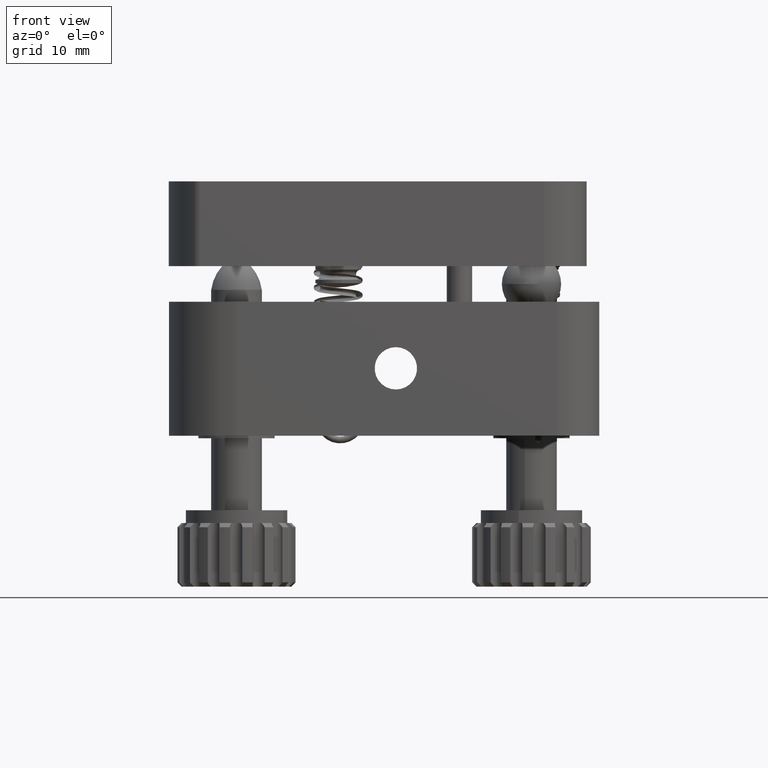
[diagram: clean part render]
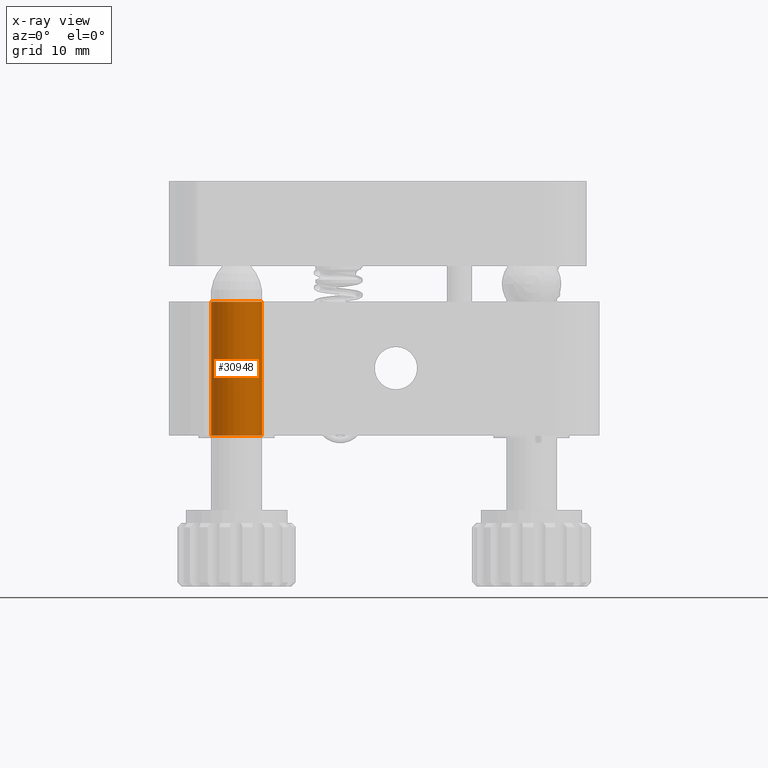
[diagram: x-ray — body ghosted, one internal face saturated and labeled with its STEP entity id]
A machine part, front view, then the same camera in x-ray: the body is ghosted and one INTERNAL B-rep face — a face not visible from any outside direction — is saturated and labeled: STEP entity #30948.
In plain terms, the highlighted cylindrical surface (edge-blend (fillet) strip) has radius 3 mm, axis along (-0, -0, -1).
Its self-contained STEP definition (entity closure, byte-faithful):
#1288 = CARTESIAN_POINT ( 'NONE',  ( -3.106063416879445400, 23.91778669584324000, 37.86366457255799400 ) ) ;
#1897 = VERTEX_POINT ( 'NONE', #25644 ) ;
#1912 = DIRECTION ( 'NONE',  ( -0.0000000000000000000, -0.0000000000000000000, -1.000000000000000000 ) ) ;
#1941 = DIRECTION ( 'NONE',  ( -1.000000000000000000, 0.0000000000000000000, 0.0000000000000000000 ) ) ;
#3707 = CARTESIAN_POINT ( 'NONE',  ( 2.893936583120557200, 23.91778669584324000, 37.86366457255799400 ) ) ;
#5490 = VERTEX_POINT ( 'NONE', #12376 ) ;
#5585 = VECTOR ( 'NONE', #6576, 1000.000000000000000 ) ;
#5914 = AXIS2_PLACEMENT_3D ( 'NONE', #35820, #18980, #1941 ) ;
#6576 = DIRECTION ( 'NONE',  ( -0.0000000000000000000, -0.0000000000000000000, -1.000000000000000000 ) ) ;
#9238 = DIRECTION ( 'NONE',  ( -1.000000000000000000, 0.0000000000000000000, 0.0000000000000000000 ) ) ;
#9391 = VECTOR ( 'NONE', #1912, 1000.000000000000000 ) ;
#9902 = VERTEX_POINT ( 'NONE', #14856 ) ;
#10178 = CARTESIAN_POINT ( 'NONE',  ( -0.1060634168794441500, 23.91778669584324000, 37.86366457255799400 ) ) ;
#11976 = DIRECTION ( 'NONE',  ( -0.0000000000000000000, -0.0000000000000000000, -1.000000000000000000 ) ) ;
#12376 = CARTESIAN_POINT ( 'NONE',  ( -3.106063416879445400, 23.91778669584324000, 22.06366457255799000 ) ) ;
#13052 = DIRECTION ( 'NONE',  ( -1.000000000000000000, 0.0000000000000000000, 0.0000000000000000000 ) ) ;
#14856 = CARTESIAN_POINT ( 'NONE',  ( 2.893936583120557200, 23.91778669584324000, 22.06366457255799000 ) ) ;
#15807 = CIRCLE ( 'NONE', #5914, 3.000000000000001300 ) ;
#16665 = ORIENTED_EDGE ( 'NONE', *, *, #19087, .F. ) ;
#16701 = EDGE_LOOP ( 'NONE', ( #16665, #33459, #27607, #19060 ) ) ;
#16970 = LINE ( 'NONE', #30140, #9391 ) ;
#18980 = DIRECTION ( 'NONE',  ( 0.0000000000000000000, 0.0000000000000000000, -1.000000000000000000 ) ) ;
#19060 = ORIENTED_EDGE ( 'NONE', *, *, #29957, .F. ) ;
#19087 = EDGE_CURVE ( 'NONE', #1897, #23282, #33968, .T. ) ;
#23211 = AXIS2_PLACEMENT_3D ( 'NONE', #10178, #29958, #13052 ) ;
#23282 = VERTEX_POINT ( 'NONE', #1288 ) ;
#25644 = CARTESIAN_POINT ( 'NONE',  ( 2.893936583120557200, 23.91778669584324000, 37.86366457255799400 ) ) ;
#25940 = CYLINDRICAL_SURFACE ( 'NONE', #27278, 3.000000000000001300 ) ;
#26462 = EDGE_CURVE ( 'NONE', #1897, #9902, #28188, .T. ) ;
#27278 = AXIS2_PLACEMENT_3D ( 'NONE', #28908, #11976, #9238 ) ;
#27607 = ORIENTED_EDGE ( 'NONE', *, *, #30592, .T. ) ;
#28188 = LINE ( 'NONE', #3707, #5585 ) ;
#28908 = CARTESIAN_POINT ( 'NONE',  ( -0.1060634168794441500, 23.91778669584324000, 37.86366457255799400 ) ) ;
#29957 = EDGE_CURVE ( 'NONE', #23282, #5490, #16970, .T. ) ;
#29958 = DIRECTION ( 'NONE',  ( 0.0000000000000000000, 0.0000000000000000000, -1.000000000000000000 ) ) ;
#30140 = CARTESIAN_POINT ( 'NONE',  ( -3.106063416879445400, 23.91778669584324000, 37.86366457255799400 ) ) ;
#30592 = EDGE_CURVE ( 'NONE', #9902, #5490, #15807, .T. ) ;
#30948 = ADVANCED_FACE ( 'NONE', ( #36032 ), #25940, .F. ) ;
#33459 = ORIENTED_EDGE ( 'NONE', *, *, #26462, .T. ) ;
#33968 = CIRCLE ( 'NONE', #23211, 3.000000000000001300 ) ;
#35820 = CARTESIAN_POINT ( 'NONE',  ( -0.1060634168794441500, 23.91778669584324000, 22.06366457255799000 ) ) ;
#36032 = FACE_OUTER_BOUND ( 'NONE', #16701, .T. ) ;